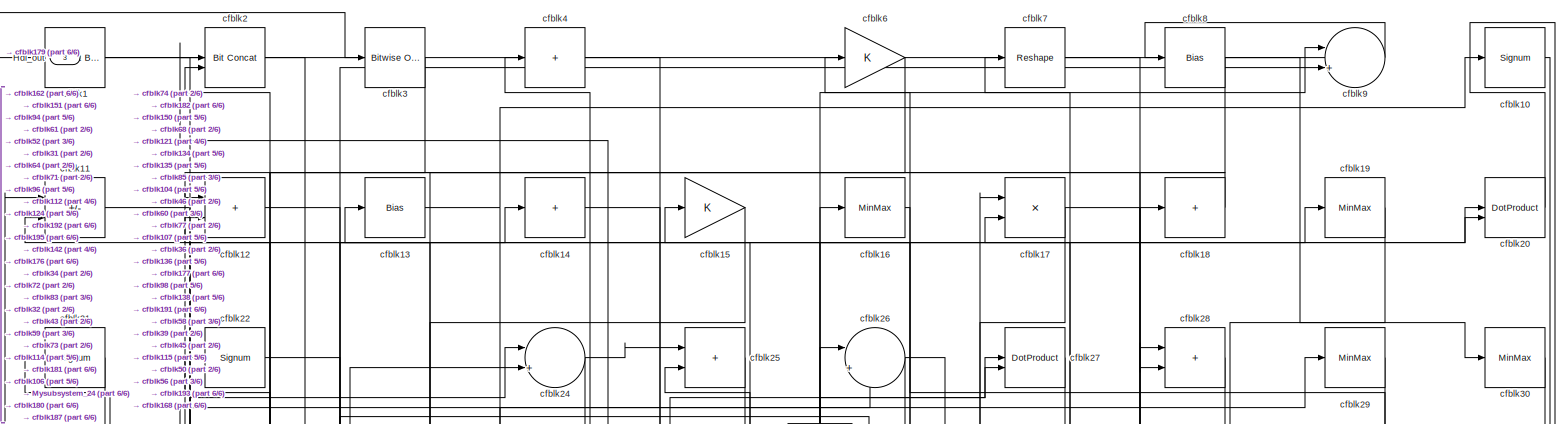
[diagram: root canvas - part 1/6, full width, top band]
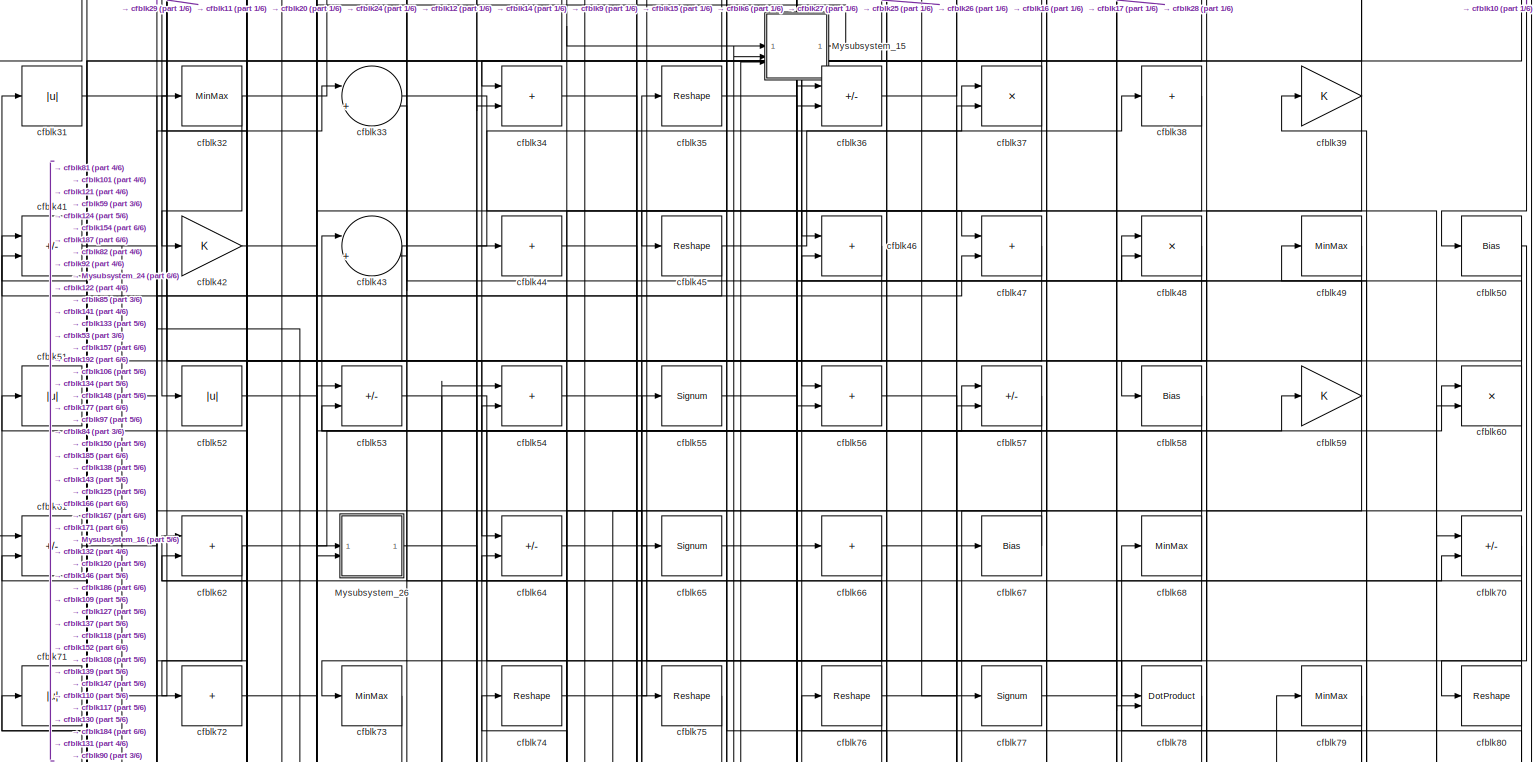
[diagram: root canvas - part 2/6, full width, top band]
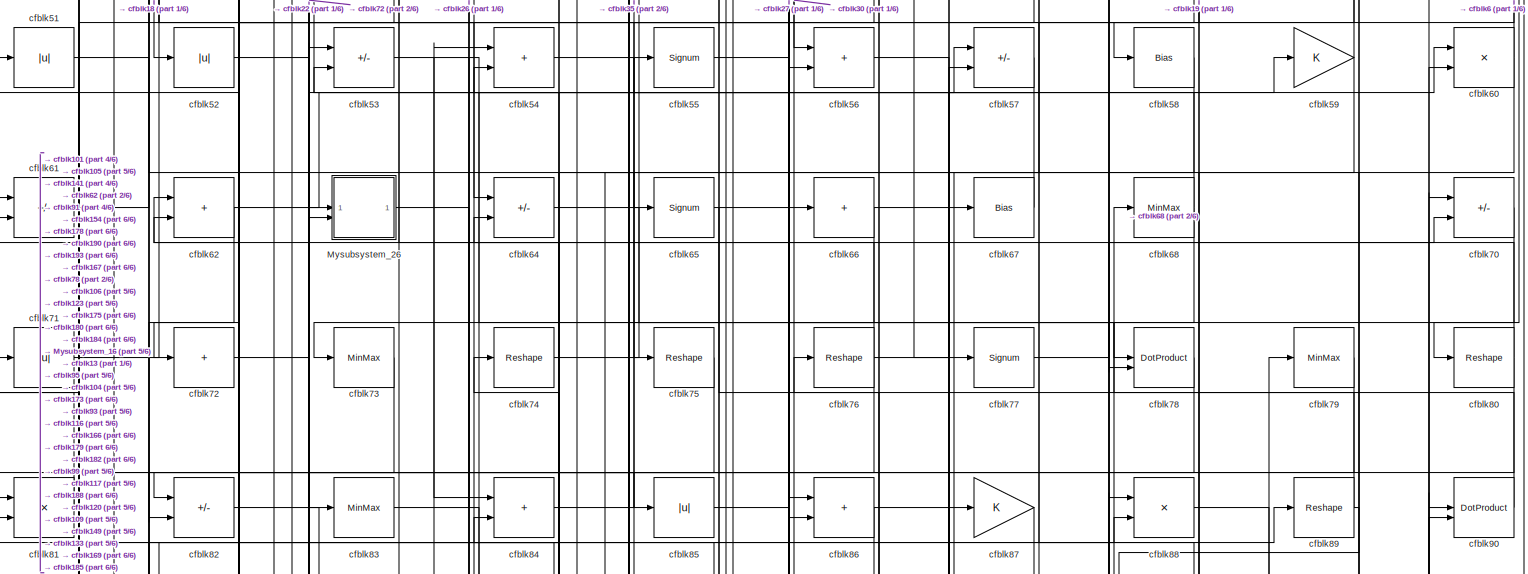
[diagram: root canvas - part 3/6, full width, middle band]
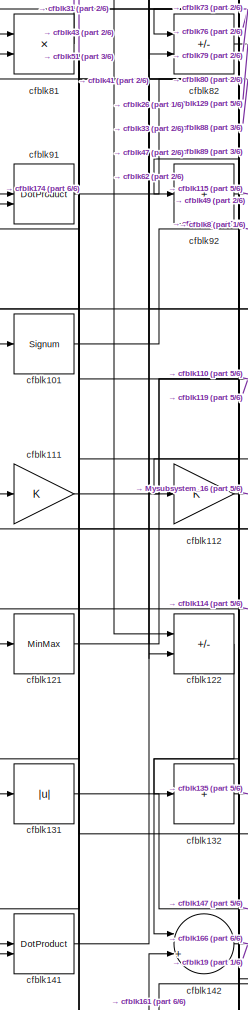
[diagram: root canvas - part 4/6, middle left region]
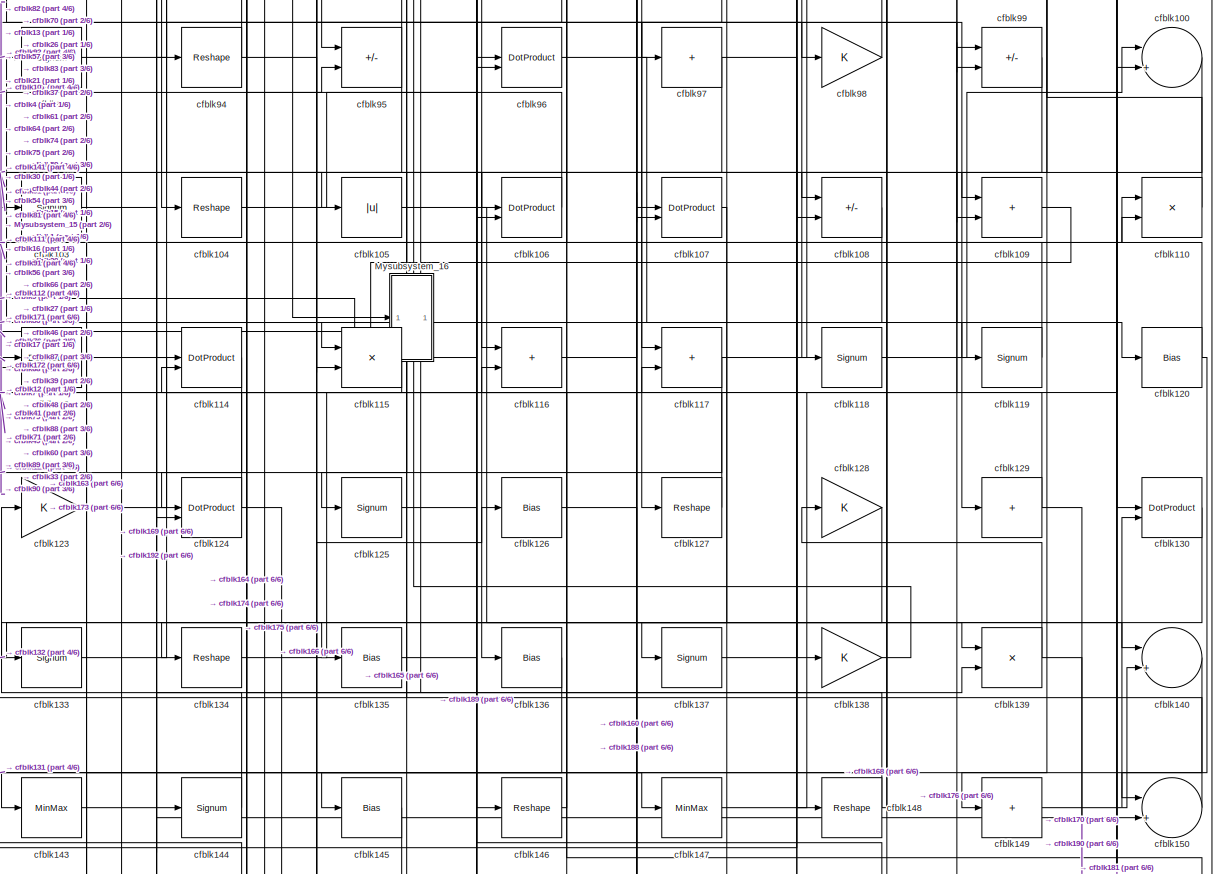
[diagram: root canvas - part 5/6, full width, middle band]
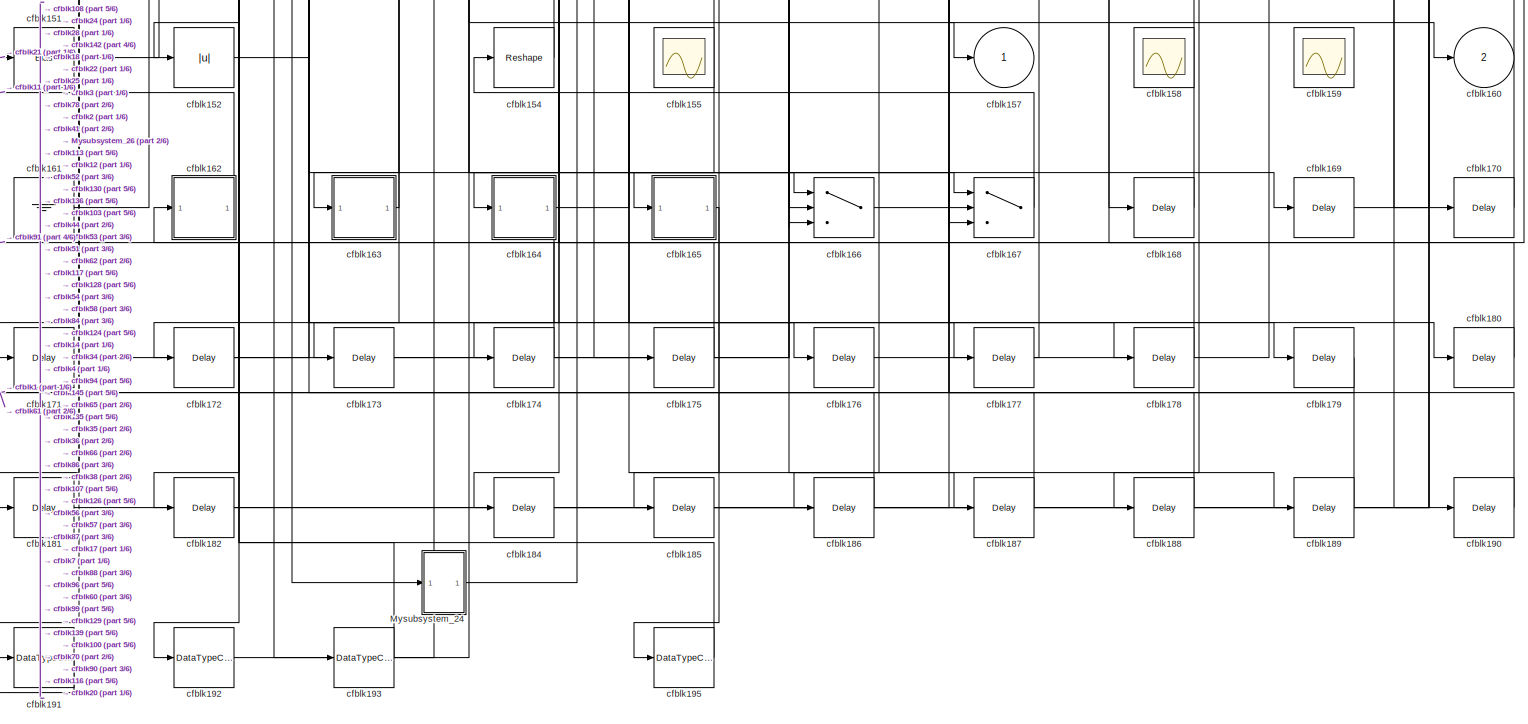
[diagram: root canvas - part 6/6, full width, bottom band]
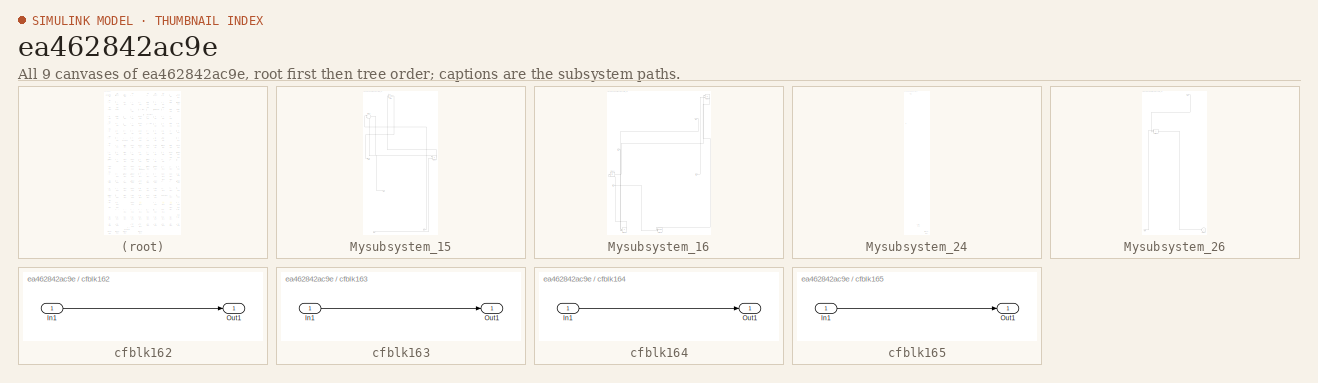
[diagram: thumbnail index - all 9 canvases of the model, root first then tree order]
MODEL slx_ea462842ac9e
KIND model
CONFIG AbsTol = auto
CONFIG EnableMultiTasking = off
CONFIG FixedStep = auto
CONFIG MaxStep = auto
CONFIG MinStep = auto
CONFIG RelTol = 1e-3
CONFIG SampleTimeConstraint = Unconstrained
CONFIG SolverName = VariableStepAuto
CONFIG StartTime = 0.0
CONFIG StopTime = 10.0
BLOCK [Outport] Hdl_out
  OutDataTypeStr = uint8
  Port = 3
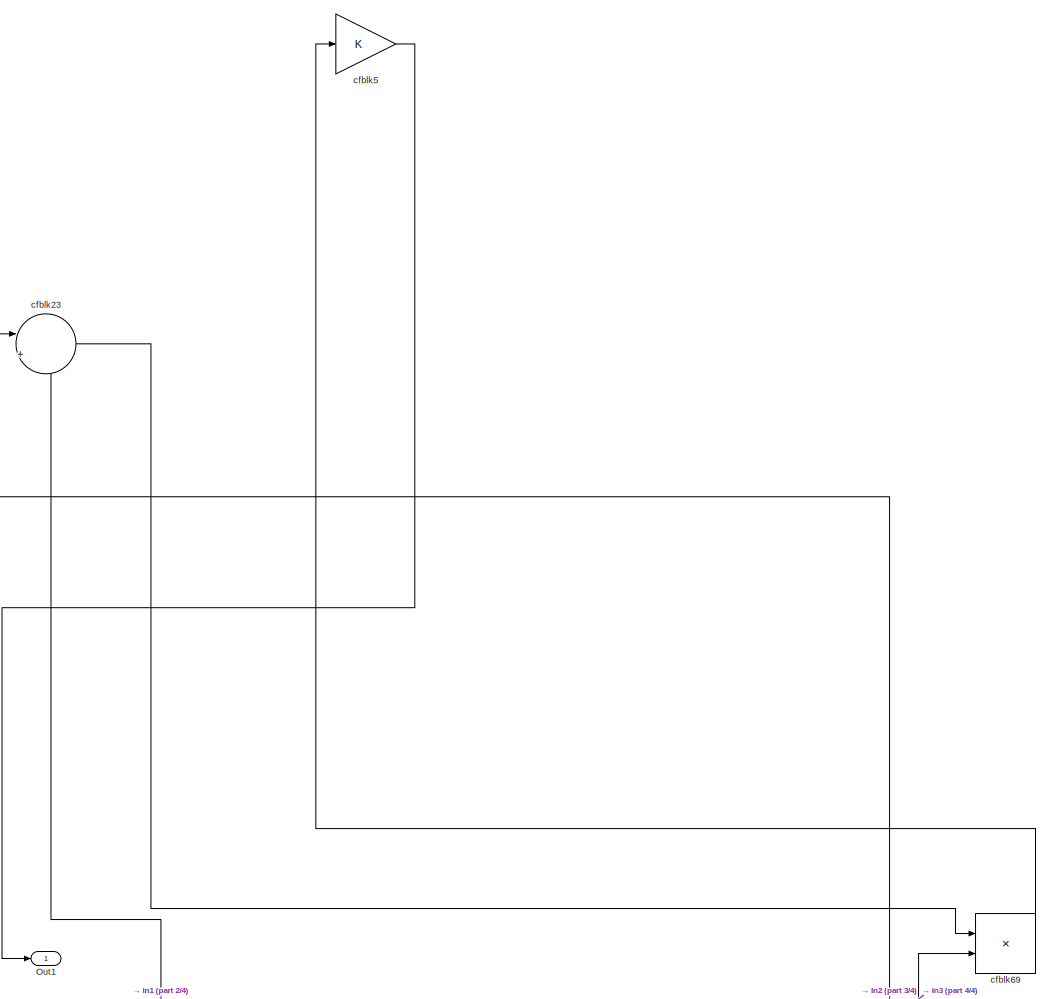
[diagram: Mysubsystem_15 - part 1/4, full width, top band]
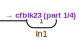
[diagram: Mysubsystem_15 - part 2/4, bottom left region]
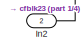
[diagram: Mysubsystem_15 - part 3/4, bottom right region]
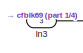
[diagram: Mysubsystem_15 - part 4/4, bottom left region]
BLOCK [SubSystem] Mysubsystem_15
  RTWFcnName = Mysubsystem_15
  RTWFcnNameOpts = User specified
  RTWFileNameOpts = Use function name
  RTWSystemCode = Reusable function
  TreatAsAtomicUnit = on
BLOCK [Inport] Mysubsystem_15/In1
BLOCK [Inport] Mysubsystem_15/In2
  Port = 2
BLOCK [Inport] Mysubsystem_15/In3
  Port = 3
BLOCK [Outport] Mysubsystem_15/Out1
BLOCK [Sum] Mysubsystem_15/cfblk23
  Inputs = |++
BLOCK [Gain] Mysubsystem_15/cfblk5
BLOCK [Product] Mysubsystem_15/cfblk69
  Inputs = */
  RndMeth = Zero
  SaturateOnIntegerOverflow = on
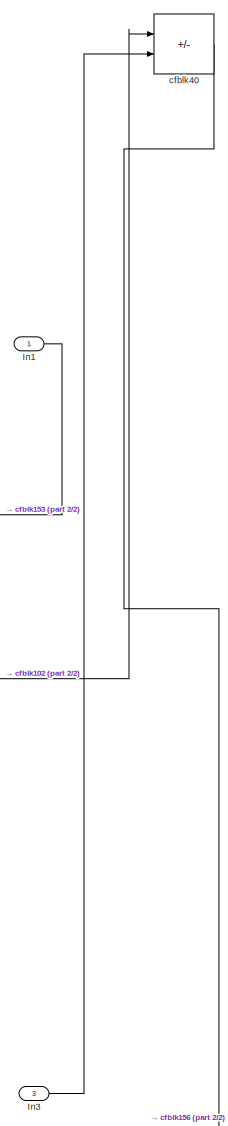
[diagram: Mysubsystem_16 - part 1/2, top right region]
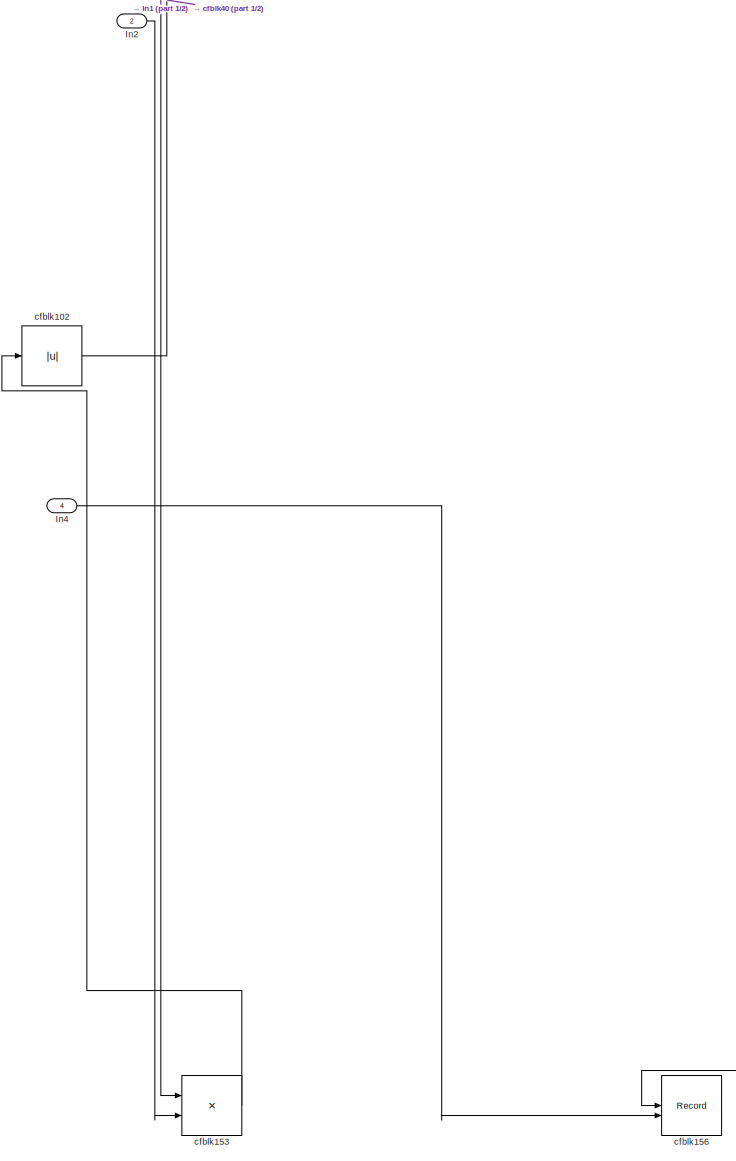
[diagram: Mysubsystem_16 - part 2/2, bottom left region]
BLOCK [SubSystem] Mysubsystem_16
  RTWFcnName = Mysubsystem_16
  RTWFcnNameOpts = User specified
  RTWFileNameOpts = Use function name
  RTWSystemCode = Reusable function
  TreatAsAtomicUnit = on
BLOCK [Inport] Mysubsystem_16/In1
BLOCK [Inport] Mysubsystem_16/In2
  Port = 2
BLOCK [Inport] Mysubsystem_16/In3
  Port = 3
BLOCK [Inport] Mysubsystem_16/In4
  Port = 4
BLOCK [Abs] Mysubsystem_16/cfblk102
  SaturateOnIntegerOverflow = off
BLOCK [Product] Mysubsystem_16/cfblk153
  Inputs = */
  RndMeth = Zero
  SaturateOnIntegerOverflow = on
BLOCK [Record] Mysubsystem_16/cfblk156
  CompatibilityTag = XY
  FileSettingsInternal = {"entries":[{"content":{"excelSettings":{"content":{},"type":"Streamout.ExcelSettings"}},"type":"Streamout.FileSettingStorage","uuid":""}],"packageUris":["http:\/\/schema.mathworks.com\/mf0\/streamout_blocks\/R2020a"],"version":"1.0"}
  Layout = [1 1]
  SignalsInternal = {"entries":[{"content":{},"type":"RecordBlkView.InputSignals","uuid":""}],"packageUris":["http:\/\/schema.mathworks.com\/mf0\/streamout_blocks\/R2020a"],"version":"1.0"}
  VisualizationBindings = {"xyplotplugin":{"info":[{"series":[],"subplotID":1}]}}
  st = -1
BLOCK [Sum] Mysubsystem_16/cfblk40
  IconShape = rectangular
  Inputs = +-
BLOCK [SubSystem] Mysubsystem_24
  RTWFcnName = Mysubsystem_24
  RTWFcnNameOpts = User specified
  RTWFileNameOpts = Use function name
  RTWSystemCode = Reusable function
  TreatAsAtomicUnit = on
BLOCK [Inport] Mysubsystem_24/In1
BLOCK [Outport] Mysubsystem_24/Out1
BLOCK [Delay] Mysubsystem_24/cfblk183
  InputPortMap = u0
  SampleTime = 1
BLOCK [DataTypeConversion] Mysubsystem_24/cfblk194
  OutDataTypeStr = uint8
  RndMeth = Floor
  SaturateOnIntegerOverflow = off
BLOCK [SubSystem] Mysubsystem_26
  RTWFcnName = Mysubsystem_26
  RTWFcnNameOpts = User specified
  RTWFileNameOpts = Use function name
  RTWSystemCode = Reusable function
  TreatAsAtomicUnit = on
BLOCK [Inport] Mysubsystem_26/In1
BLOCK [Inport] Mysubsystem_26/In2
  Port = 2
BLOCK [Outport] Mysubsystem_26/cfblk157
  VectorParamsAs1DForOutWhenUnconnected = off
BLOCK [Sum] Mysubsystem_26/cfblk63
  IconShape = rectangular
BLOCK [Reference] cfblk1  REF=simulink/Logic and Bit
Operations/Extract Bits
  LibrarySourceBlock = hdlsllib/Logic and Bit\nOperations/Extract Bits
  SourceBlock = simulink/Logic and Bit\nOperations/Extract Bits
  SourceType = Extract Bits
BLOCK [Signum] cfblk10
BLOCK [Sum] cfblk100
  Inputs = |++
  OutDataTypeStr = uint8
BLOCK [Signum] cfblk101
BLOCK [Signum] cfblk103
BLOCK [Reshape] cfblk104
BLOCK [Abs] cfblk105
  OutDataTypeStr = uint8
  SaturateOnIntegerOverflow = off
BLOCK [DotProduct] cfblk106
  OutDataTypeStr = uint8
BLOCK [DotProduct] cfblk107
  OutDataTypeStr = uint8
BLOCK [Sum] cfblk108
  IconShape = rectangular
  Inputs = +-
  OutDataTypeStr = uint8
BLOCK [Sum] cfblk109
  IconShape = rectangular
  OutDataTypeStr = uint8
BLOCK [Sum] cfblk11
  IconShape = rectangular
  Inputs = +-
  OutDataTypeStr = uint8
BLOCK [Product] cfblk110
  Inputs = */
  OutDataTypeStr = uint8
  RndMeth = Zero
  SaturateOnIntegerOverflow = on
BLOCK [Gain] cfblk111
  OutDataTypeStr = uint8
BLOCK [Gain] cfblk112
  OutDataTypeStr = uint8
BLOCK [DotProduct] cfblk113
  OutDataTypeStr = uint8
BLOCK [DotProduct] cfblk114
  OutDataTypeStr = uint8
BLOCK [Product] cfblk115
  Inputs = */
  OutDataTypeStr = uint8
  RndMeth = Zero
  SaturateOnIntegerOverflow = on
BLOCK [Sum] cfblk116
  IconShape = rectangular
  OutDataTypeStr = uint8
BLOCK [Sum] cfblk117
  IconShape = rectangular
  OutDataTypeStr = uint8
BLOCK [Signum] cfblk118
BLOCK [Signum] cfblk119
BLOCK [Sum] cfblk12
  IconShape = rectangular
  OutDataTypeStr = uint8
BLOCK [Bias] cfblk120
  Bias = 0.0
  SaturateOnIntegerOverflow = off
BLOCK [MinMax] cfblk121
  OutDataTypeStr = uint8
BLOCK [Sum] cfblk122
  IconShape = rectangular
  Inputs = +-
  OutDataTypeStr = uint8
BLOCK [Gain] cfblk123
  OutDataTypeStr = uint8
BLOCK [DotProduct] cfblk124
  OutDataTypeStr = uint8
BLOCK [Signum] cfblk125
BLOCK [Bias] cfblk126
  Bias = 0.0
  SaturateOnIntegerOverflow = off
BLOCK [Reshape] cfblk127
BLOCK [Gain] cfblk128
  OutDataTypeStr = uint8
BLOCK [Sum] cfblk129
  IconShape = rectangular
  Inputs = +
  OutDataTypeStr = uint8
BLOCK [Bias] cfblk13
  Bias = 0.0
  SaturateOnIntegerOverflow = off
BLOCK [DotProduct] cfblk130
  OutDataTypeStr = uint8
BLOCK [Abs] cfblk131
  OutDataTypeStr = uint8
  SaturateOnIntegerOverflow = off
BLOCK [Sum] cfblk132
  IconShape = rectangular
  Inputs = +
  OutDataTypeStr = uint8
BLOCK [Signum] cfblk133
BLOCK [Reshape] cfblk134
BLOCK [Bias] cfblk135
  Bias = 0.0
  SaturateOnIntegerOverflow = off
BLOCK [Bias] cfblk136
  Bias = 0.0
  SaturateOnIntegerOverflow = off
BLOCK [Signum] cfblk137
BLOCK [Gain] cfblk138
  OutDataTypeStr = uint8
BLOCK [Product] cfblk139
  Inputs = */
  OutDataTypeStr = uint8
  RndMeth = Zero
  SaturateOnIntegerOverflow = on
BLOCK [Sum] cfblk14
  IconShape = rectangular
  Inputs = +
  OutDataTypeStr = uint8
BLOCK [Sum] cfblk140
  Inputs = |++
  OutDataTypeStr = uint8
BLOCK [DotProduct] cfblk141
  OutDataTypeStr = uint8
BLOCK [Sum] cfblk142
  Inputs = |++
  OutDataTypeStr = uint8
BLOCK [MinMax] cfblk143
  OutDataTypeStr = uint8
BLOCK [Signum] cfblk144
BLOCK [Bias] cfblk145
  Bias = 0.0
  SaturateOnIntegerOverflow = off
BLOCK [Reshape] cfblk146
BLOCK [MinMax] cfblk147
  OutDataTypeStr = uint8
BLOCK [Reshape] cfblk148
BLOCK [Sum] cfblk149
  IconShape = rectangular
  Inputs = +
  OutDataTypeStr = uint8
BLOCK [Gain] cfblk15
  OutDataTypeStr = uint8
BLOCK [Sum] cfblk150
  Inputs = |++
  OutDataTypeStr = uint8
BLOCK [Bias] cfblk151
  Bias = 0.0
  SaturateOnIntegerOverflow = off
BLOCK [Abs] cfblk152
  OutDataTypeStr = uint8
  SaturateOnIntegerOverflow = off
BLOCK [Reshape] cfblk154
BLOCK [Scope] cfblk155
  Floating = on
  NumInputPorts = 1
  ScopeSpecificationString = Simulink.scopes.TimeScopeBlockCfg('CurrentConfiguration', extmgr.ConfigurationSet(extmgr.Configuration('Core','General UI',true,'FigureColor',[0.156862745098039 0.156862745098039 0.156862745098039]),extmgr.Configuration('Core','Source UI',true),extmgr.Configuration('Sources','WiredSimulink',true,'DataLoggingVariableName','ScopeData1','DataLoggingSaveFormat','StructureWithTime','DataLoggingLimitDat...<+2713ch>  <repeated x3 — deduplicated; at blocks: cfblk155, cfblk158, cfblk159>
BLOCK [Outport] cfblk157
  OutDataTypeStr = uint8
  VectorParamsAs1DForOutWhenUnconnected = off
BLOCK [Scope] cfblk158
  Floating = on
  NumInputPorts = 1
BLOCK [Scope] cfblk159
  Floating = on
  NumInputPorts = 1
BLOCK [MinMax] cfblk16
  OutDataTypeStr = uint8
BLOCK [Outport] cfblk160
  OutDataTypeStr = uint8
  Port = 2
  VectorParamsAs1DForOutWhenUnconnected = off
BLOCK [Ground] cfblk161
BLOCK [SubSystem] cfblk162
  LibrarySourceBlock = hdlsllib/Ports &\nSubsystems/Subsystem
BLOCK [Inport] cfblk162/In1
BLOCK [Outport] cfblk162/Out1
BLOCK [SubSystem] cfblk163
  LibrarySourceBlock = hdlsllib/Ports &\nSubsystems/Subsystem
BLOCK [Inport] cfblk163/In1
BLOCK [Outport] cfblk163/Out1
BLOCK [SubSystem] cfblk164
  LibrarySourceBlock = hdlsllib/Ports &\nSubsystems/Subsystem
BLOCK [Inport] cfblk164/In1
BLOCK [Outport] cfblk164/Out1
BLOCK [SubSystem] cfblk165
  LibrarySourceBlock = hdlsllib/Ports &\nSubsystems/Subsystem
BLOCK [Inport] cfblk165/In1
BLOCK [Outport] cfblk165/Out1
BLOCK [Switch] cfblk166
  InputSameDT = off
  OutDataTypeStr = uint8
  SaturateOnIntegerOverflow = off
BLOCK [Switch] cfblk167
  InputSameDT = off
  OutDataTypeStr = uint8
  SaturateOnIntegerOverflow = off
BLOCK [Delay] cfblk168
  InputPortMap = u0
  SampleTime = 1
BLOCK [Delay] cfblk169
  InputPortMap = u0
  SampleTime = 1
BLOCK [Product] cfblk17
  Inputs = */
  OutDataTypeStr = uint8
  RndMeth = Zero
  SaturateOnIntegerOverflow = on
BLOCK [Delay] cfblk170
  InputPortMap = u0
  SampleTime = 1
BLOCK [Delay] cfblk171
  InputPortMap = u0
  SampleTime = 1
BLOCK [Delay] cfblk172
  InputPortMap = u0
  SampleTime = 1
BLOCK [Delay] cfblk173
  InputPortMap = u0
  SampleTime = 1
BLOCK [Delay] cfblk174
  InputPortMap = u0
  SampleTime = 1
BLOCK [Delay] cfblk175
  InputPortMap = u0
  SampleTime = 1
BLOCK [Delay] cfblk176
  InputPortMap = u0
  SampleTime = 1
BLOCK [Delay] cfblk177
  InputPortMap = u0
  SampleTime = 1
BLOCK [Delay] cfblk178
  InputPortMap = u0
  SampleTime = 1
BLOCK [Delay] cfblk179
  InputPortMap = u0
  SampleTime = 1
BLOCK [Sum] cfblk18
  IconShape = rectangular
  Inputs = +
  OutDataTypeStr = uint8
BLOCK [Delay] cfblk180
  InputPortMap = u0
  SampleTime = 1
BLOCK [Delay] cfblk181
  InputPortMap = u0
  SampleTime = 1
BLOCK [Delay] cfblk182
  InputPortMap = u0
  SampleTime = 1
BLOCK [Delay] cfblk184
  InputPortMap = u0
  SampleTime = 1
BLOCK [Delay] cfblk185
  InputPortMap = u0
  SampleTime = 1
BLOCK [Delay] cfblk186
  InputPortMap = u0
  SampleTime = 1
BLOCK [Delay] cfblk187
  InputPortMap = u0
  SampleTime = 1
BLOCK [Delay] cfblk188
  InputPortMap = u0
  SampleTime = 1
BLOCK [Delay] cfblk189
  InputPortMap = u0
  SampleTime = 1
BLOCK [MinMax] cfblk19
  OutDataTypeStr = uint8
BLOCK [Delay] cfblk190
  InputPortMap = u0
  SampleTime = 1
BLOCK [DataTypeConversion] cfblk191
  OutDataTypeStr = uint8
  RndMeth = Floor
  SaturateOnIntegerOverflow = off
BLOCK [DataTypeConversion] cfblk192
  OutDataTypeStr = uint8
  RndMeth = Floor
  SaturateOnIntegerOverflow = off
BLOCK [DataTypeConversion] cfblk193
  OutDataTypeStr = uint8
  RndMeth = Floor
  SaturateOnIntegerOverflow = off
BLOCK [DataTypeConversion] cfblk195
  OutDataTypeStr = uint8
  RndMeth = Floor
  SaturateOnIntegerOverflow = off
BLOCK [Reference] cfblk2  REF=hdlsllib/Logic and Bit
Operations/Bit Concat
  SourceBlock = hdlsllib/Logic and Bit\nOperations/Bit Concat
  SourceType = Bit Concat
BLOCK [DotProduct] cfblk20
  OutDataTypeStr = uint8
BLOCK [Signum] cfblk21
BLOCK [Signum] cfblk22
BLOCK [Sum] cfblk24
  Inputs = |++
  OutDataTypeStr = uint8
BLOCK [Sum] cfblk25
  IconShape = rectangular
  OutDataTypeStr = uint8
BLOCK [Sum] cfblk26
  Inputs = |++
  OutDataTypeStr = uint8
BLOCK [DotProduct] cfblk27
  OutDataTypeStr = uint8
BLOCK [Sum] cfblk28
  IconShape = rectangular
  OutDataTypeStr = uint8
BLOCK [MinMax] cfblk29
  OutDataTypeStr = uint8
BLOCK [Reference] cfblk3  REF=simulink/Logic and Bit
Operations/Bitwise
Operator
  LibrarySourceBlock = hdlsllib/Logic and Bit\nOperations/Bitwise\nOperator
  SourceBlock = simulink/Logic and Bit\nOperations/Bitwise\nOperator
  SourceType = Bitwise Operator
BLOCK [MinMax] cfblk30
  OutDataTypeStr = uint8
BLOCK [Abs] cfblk31
  OutDataTypeStr = uint8
  SaturateOnIntegerOverflow = off
BLOCK [MinMax] cfblk32
  OutDataTypeStr = uint8
BLOCK [Sum] cfblk33
  Inputs = |++
  OutDataTypeStr = uint8
BLOCK [Sum] cfblk34
  IconShape = rectangular
  OutDataTypeStr = uint8
BLOCK [Reshape] cfblk35
BLOCK [Sum] cfblk36
  IconShape = rectangular
  Inputs = +-
  OutDataTypeStr = uint8
BLOCK [Product] cfblk37
  Inputs = */
  OutDataTypeStr = uint8
  RndMeth = Zero
  SaturateOnIntegerOverflow = on
BLOCK [Sum] cfblk38
  IconShape = rectangular
  Inputs = +
  OutDataTypeStr = uint8
BLOCK [Gain] cfblk39
  OutDataTypeStr = uint8
BLOCK [Sum] cfblk4
  IconShape = rectangular
  Inputs = +
  OutDataTypeStr = uint8
BLOCK [Sum] cfblk41
  IconShape = rectangular
  Inputs = +-
  OutDataTypeStr = uint8
BLOCK [Gain] cfblk42
  OutDataTypeStr = uint8
BLOCK [Sum] cfblk43
  Inputs = |++
  OutDataTypeStr = uint8
BLOCK [Sum] cfblk44
  IconShape = rectangular
  Inputs = +
  OutDataTypeStr = uint8
BLOCK [Reshape] cfblk45
BLOCK [Sum] cfblk46
  IconShape = rectangular
  OutDataTypeStr = uint8
BLOCK [Sum] cfblk47
  IconShape = rectangular
  OutDataTypeStr = uint8
BLOCK [Product] cfblk48
  Inputs = */
  OutDataTypeStr = uint8
  RndMeth = Zero
  SaturateOnIntegerOverflow = on
BLOCK [MinMax] cfblk49
  OutDataTypeStr = uint8
BLOCK [Bias] cfblk50
  Bias = 0.0
  SaturateOnIntegerOverflow = off
BLOCK [Abs] cfblk51
  OutDataTypeStr = uint8
  SaturateOnIntegerOverflow = off
BLOCK [Abs] cfblk52
  OutDataTypeStr = uint8
  SaturateOnIntegerOverflow = off
BLOCK [Sum] cfblk53
  IconShape = rectangular
  Inputs = +-
  OutDataTypeStr = uint8
BLOCK [Sum] cfblk54
  IconShape = rectangular
  OutDataTypeStr = uint8
BLOCK [Signum] cfblk55
BLOCK [Sum] cfblk56
  IconShape = rectangular
  OutDataTypeStr = uint8
BLOCK [Sum] cfblk57
  IconShape = rectangular
  Inputs = +-
  OutDataTypeStr = uint8
BLOCK [Bias] cfblk58
  Bias = 0.0
  SaturateOnIntegerOverflow = off
BLOCK [Gain] cfblk59
  OutDataTypeStr = uint8
BLOCK [Gain] cfblk6
  OutDataTypeStr = uint8
BLOCK [Product] cfblk60
  Inputs = */
  OutDataTypeStr = uint8
  RndMeth = Zero
  SaturateOnIntegerOverflow = on
BLOCK [Sum] cfblk61
  IconShape = rectangular
  Inputs = +-
  OutDataTypeStr = uint8
BLOCK [Sum] cfblk62
  IconShape = rectangular
  OutDataTypeStr = uint8
BLOCK [Sum] cfblk64
  IconShape = rectangular
  Inputs = +-
  OutDataTypeStr = uint8
BLOCK [Signum] cfblk65
BLOCK [Sum] cfblk66
  IconShape = rectangular
  Inputs = +
  OutDataTypeStr = uint8
BLOCK [Bias] cfblk67
  Bias = 0.0
  SaturateOnIntegerOverflow = off
BLOCK [MinMax] cfblk68
  OutDataTypeStr = uint8
BLOCK [Reshape] cfblk7
BLOCK [Sum] cfblk70
  IconShape = rectangular
  Inputs = +-
  OutDataTypeStr = uint8
BLOCK [Abs] cfblk71
  OutDataTypeStr = uint8
  SaturateOnIntegerOverflow = off
BLOCK [Sum] cfblk72
  IconShape = rectangular
  Inputs = +
  OutDataTypeStr = uint8
BLOCK [MinMax] cfblk73
  OutDataTypeStr = uint8
BLOCK [Reshape] cfblk74
BLOCK [Reshape] cfblk75
BLOCK [Reshape] cfblk76
BLOCK [Signum] cfblk77
BLOCK [DotProduct] cfblk78
  OutDataTypeStr = uint8
BLOCK [MinMax] cfblk79
  OutDataTypeStr = uint8
BLOCK [Bias] cfblk8
  Bias = 0.0
  SaturateOnIntegerOverflow = off
BLOCK [Reshape] cfblk80
BLOCK [Product] cfblk81
  Inputs = */
  OutDataTypeStr = uint8
  RndMeth = Zero
  SaturateOnIntegerOverflow = on
BLOCK [Sum] cfblk82
  IconShape = rectangular
  Inputs = +-
  OutDataTypeStr = uint8
BLOCK [MinMax] cfblk83
  OutDataTypeStr = uint8
BLOCK [Sum] cfblk84
  IconShape = rectangular
  OutDataTypeStr = uint8
BLOCK [Abs] cfblk85
  OutDataTypeStr = uint8
  SaturateOnIntegerOverflow = off
BLOCK [Sum] cfblk86
  IconShape = rectangular
  OutDataTypeStr = uint8
BLOCK [Gain] cfblk87
  OutDataTypeStr = uint8
BLOCK [Product] cfblk88
  Inputs = */
  OutDataTypeStr = uint8
  RndMeth = Zero
  SaturateOnIntegerOverflow = on
BLOCK [Reshape] cfblk89
BLOCK [Sum] cfblk9
  Inputs = |++
  OutDataTypeStr = uint8
BLOCK [DotProduct] cfblk90
  OutDataTypeStr = uint8
BLOCK [DotProduct] cfblk91
  OutDataTypeStr = uint8
BLOCK [Sum] cfblk92
  IconShape = rectangular
  Inputs = +
  OutDataTypeStr = uint8
BLOCK [Signum] cfblk93
BLOCK [Reshape] cfblk94
BLOCK [Sum] cfblk95
  IconShape = rectangular
  Inputs = +-
  OutDataTypeStr = uint8
BLOCK [DotProduct] cfblk96
  OutDataTypeStr = uint8
BLOCK [Sum] cfblk97
  IconShape = rectangular
  Inputs = +
  OutDataTypeStr = uint8
BLOCK [Gain] cfblk98
  OutDataTypeStr = uint8
BLOCK [Sum] cfblk99
  IconShape = rectangular
  Inputs = +-
  OutDataTypeStr = uint8
LINE Mysubsystem_15/In1:1 -> Mysubsystem_15/cfblk23:2
LINE Mysubsystem_15/In2:1 -> Mysubsystem_15/cfblk23:1
LINE Mysubsystem_15/In3:1 -> Mysubsystem_15/cfblk69:2
LINE Mysubsystem_15/cfblk23:1 -> Mysubsystem_15/cfblk69:1
LINE Mysubsystem_15/cfblk5:1 -> Mysubsystem_15/Out1:1
LINE Mysubsystem_15/cfblk69:1 -> Mysubsystem_15/cfblk5:1
LINE Mysubsystem_15:1 -> Mysubsystem_26:1
LINE Mysubsystem_16/In1:1 -> Mysubsystem_16/cfblk153:1
LINE Mysubsystem_16/In2:1 -> Mysubsystem_16/cfblk153:2
LINE Mysubsystem_16/In3:1 -> Mysubsystem_16/cfblk40:2
LINE Mysubsystem_16/In4:1 -> Mysubsystem_16/cfblk156:2
LINE Mysubsystem_16/cfblk102:1 -> Mysubsystem_16/cfblk40:1
LINE Mysubsystem_16/cfblk153:1 -> Mysubsystem_16/cfblk102:1
LINE Mysubsystem_16/cfblk40:1 -> Mysubsystem_16/cfblk156:1
LINE Mysubsystem_24/In1:1 -> Mysubsystem_24/cfblk183:1
LINE Mysubsystem_24/cfblk183:1 -> Mysubsystem_24/cfblk194:1
LINE Mysubsystem_24/cfblk194:1 -> Mysubsystem_24/Out1:1
LINE Mysubsystem_24:1 -> cfblk2:1
LINE Mysubsystem_26/In1:1 -> Mysubsystem_26/cfblk63:2
LINE Mysubsystem_26/In2:1 -> Mysubsystem_26/cfblk63:1
LINE Mysubsystem_26/cfblk63:1 -> Mysubsystem_26/cfblk157:1
LINE Mysubsystem_26:1 -> cfblk157:1
NET cfblk100:1 -> cfblk116:1, cfblk125:1
NET cfblk101:1 -> cfblk47:2, cfblk95:2
NET cfblk103:1 -> cfblk110:2, cfblk169:1
LINE cfblk104:1 -> cfblk56:2
LINE cfblk105:1 -> cfblk139:1
NET cfblk106:1 -> Mysubsystem_15:1, cfblk4:1
LINE cfblk107:1 -> cfblk137:1
LINE cfblk108:1 -> cfblk171:1
LINE cfblk109:1 -> Mysubsystem_16:3
LINE cfblk10:1 -> cfblk50:1
LINE cfblk110:1 -> cfblk49:1
LINE cfblk111:1 -> cfblk110:1
LINE cfblk112:1 -> Mysubsystem_16:4
LINE cfblk113:1 -> cfblk117:2
LINE cfblk114:1 -> cfblk121:1
NET cfblk115:1 -> cfblk114:2, cfblk20:2
LINE cfblk116:1 -> cfblk60:1
NET cfblk117:1 -> cfblk164:1, cfblk39:1
LINE cfblk118:1 -> cfblk100:1
LINE cfblk119:1 -> cfblk91:2
LINE cfblk11:1 -> cfblk64:1
NET cfblk120:1 -> cfblk150:1, cfblk46:2
NET cfblk121:1 -> cfblk26:1, cfblk33:1
LINE cfblk122:1 -> cfblk142:1
LINE cfblk123:1 -> cfblk57:1
NET cfblk124:1 -> cfblk12:2, cfblk175:1, cfblk71:1
NET cfblk125:1 -> cfblk140:1, cfblk146:1, cfblk48:1
LINE cfblk126:1 -> cfblk160:1
LINE cfblk127:1 -> cfblk41:1
LINE cfblk128:1 -> cfblk174:1
NET cfblk129:1 -> cfblk113:2, cfblk170:1
NET cfblk12:1 -> cfblk176:1, cfblk34:2
LINE cfblk130:1 -> cfblk163:1
LINE cfblk131:1 -> cfblk147:1
LINE cfblk132:1 -> cfblk135:1
LINE cfblk133:1 -> cfblk90:2
LINE cfblk134:1 -> cfblk16:1
NET cfblk135:1 -> cfblk189:1, cfblk9:1
LINE cfblk136:1 -> cfblk173:1
LINE cfblk137:1 -> cfblk70:2
LINE cfblk138:1 -> Mysubsystem_15:2
NET cfblk139:1 -> cfblk190:1, cfblk48:2
NET cfblk13:1 -> cfblk10:1, cfblk114:1
LINE cfblk140:1 -> cfblk145:1
NET cfblk141:1 -> cfblk111:1, cfblk88:2
NET cfblk142:1 -> cfblk166:3, cfblk19:1
NET cfblk143:1 -> Mysubsystem_15:3, cfblk139:2, cfblk144:1, cfblk150:2
LINE cfblk144:1 -> cfblk123:1
LINE cfblk145:1 -> cfblk165:1
LINE cfblk146:1 -> cfblk76:1
LINE cfblk147:1 -> cfblk79:1
NET cfblk148:1 -> cfblk128:1, cfblk74:1
NET cfblk149:1 -> cfblk130:2, cfblk140:2
LINE cfblk14:1 -> cfblk180:1
NET cfblk150:1 -> cfblk15:1, cfblk61:2, cfblk64:2
LINE cfblk151:1 -> cfblk18:1
LINE cfblk152:1 -> Mysubsystem_26:2
NET cfblk154:1 -> cfblk51:1, cfblk62:1
LINE cfblk15:1 -> cfblk43:2
LINE cfblk161:1 -> cfblk142:2
LINE cfblk162/In1:1 -> cfblk162/Out1:1
LINE cfblk162:1 -> cfblk11:1
LINE cfblk163/In1:1 -> cfblk163/Out1:1
LINE cfblk163:1 -> cfblk103:1
LINE cfblk164/In1:1 -> cfblk164/Out1:1
NET cfblk164:1 -> cfblk126:1, cfblk172:1
LINE cfblk165/In1:1 -> cfblk165/Out1:1
LINE cfblk165:1 -> cfblk195:1
LINE cfblk166:1 -> cfblk87:1
LINE cfblk167:1 -> cfblk154:1
LINE cfblk168:1 -> cfblk96:1
LINE cfblk169:1 -> cfblk90:1
LINE cfblk16:1 -> cfblk46:1
LINE cfblk170:1 -> cfblk116:2
LINE cfblk171:1 -> cfblk36:2
LINE cfblk172:1 -> cfblk113:1
LINE cfblk173:1 -> cfblk86:2
LINE cfblk174:1 -> cfblk91:1
LINE cfblk175:1 -> cfblk84:2
LINE cfblk176:1 -> cfblk99:1
LINE cfblk177:1 -> cfblk17:2
LINE cfblk178:1 -> cfblk88:1
LINE cfblk179:1 -> cfblk1:1
NET cfblk17:1 -> cfblk107:2, cfblk138:1
LINE cfblk180:1 -> cfblk54:2
LINE cfblk181:1 -> cfblk100:2
LINE cfblk182:1 -> cfblk57:2
LINE cfblk184:1 -> cfblk70:1
LINE cfblk185:1 -> cfblk60:2
LINE cfblk186:1 -> cfblk61:1
LINE cfblk187:1 -> cfblk62:2
LINE cfblk188:1 -> cfblk107:1
LINE cfblk189:1 -> cfblk167:2
NET cfblk18:1 -> cfblk12:1, cfblk52:1
LINE cfblk190:1 -> cfblk53:1
LINE cfblk191:1 -> cfblk3:1
NET cfblk192:1 -> cfblk44:1, cfblk94:1
NET cfblk193:1 -> cfblk22:1, cfblk54:1
LINE cfblk195:1 -> cfblk2:2
LINE cfblk19:1 -> cfblk58:1
LINE cfblk1:1 -> cfblk96:2
LINE cfblk20:1 -> cfblk162:1
LINE cfblk21:1 -> cfblk151:1
LINE cfblk22:1 -> cfblk83:1
NET cfblk24:1 -> cfblk181:1, cfblk25:1
LINE cfblk25:1 -> cfblk182:1
NET cfblk26:1 -> cfblk104:1, cfblk77:1
LINE cfblk27:1 -> cfblk136:1
LINE cfblk28:1 -> cfblk191:1
LINE cfblk29:1 -> cfblk45:1
LINE cfblk2:1 -> cfblk193:1
NET cfblk30:1 -> cfblk115:2, cfblk56:1
NET cfblk31:1 -> cfblk24:1, cfblk65:1
NET cfblk32:1 -> cfblk24:2, cfblk42:1
LINE cfblk33:1 -> cfblk130:1
LINE cfblk34:1 -> cfblk177:1
LINE cfblk35:1 -> cfblk167:1
LINE cfblk36:1 -> cfblk17:1
NET cfblk37:1 -> cfblk134:1, cfblk34:1
LINE cfblk38:1 -> cfblk186:1
NET cfblk39:1 -> cfblk108:1, cfblk11:2
LINE cfblk3:1 -> cfblk192:1
NET cfblk41:1 -> Mysubsystem_24:1, cfblk122:1
LINE cfblk42:1 -> cfblk47:1
NET cfblk43:1 -> cfblk37:1, cfblk81:1
LINE cfblk44:1 -> cfblk97:1
NET cfblk45:1 -> cfblk38:1, cfblk41:2
LINE cfblk46:1 -> cfblk72:1
LINE cfblk47:1 -> cfblk92:1
LINE cfblk48:1 -> cfblk67:1
LINE cfblk49:1 -> cfblk82:1
LINE cfblk4:1 -> cfblk187:1
NET cfblk50:1 -> cfblk75:1, cfblk80:1
NET cfblk51:1 -> cfblk101:1, cfblk105:1
LINE cfblk52:1 -> cfblk178:1
NET cfblk53:1 -> cfblk167:3, cfblk78:1, cfblk84:1
LINE cfblk54:1 -> cfblk95:1
LINE cfblk55:1 -> cfblk86:1
LINE cfblk56:1 -> cfblk179:1
LINE cfblk57:1 -> cfblk53:2
LINE cfblk58:1 -> cfblk184:1
NET cfblk59:1 -> Mysubsystem_16:1, cfblk13:1
NET cfblk60:1 -> cfblk149:1, cfblk188:1, cfblk6:1
LINE cfblk61:1 -> cfblk29:1
NET cfblk62:1 -> cfblk122:2, cfblk36:1, cfblk59:1
LINE cfblk64:1 -> cfblk78:2
NET cfblk65:1 -> cfblk185:1, cfblk66:1
NET cfblk66:1 -> cfblk109:2, cfblk127:1, cfblk166:2
LINE cfblk67:1 -> cfblk43:1
NET cfblk68:1 -> cfblk118:1, cfblk25:2
LINE cfblk6:1 -> cfblk73:1
LINE cfblk70:1 -> cfblk133:1
LINE cfblk71:1 -> cfblk20:1
NET cfblk72:1 -> cfblk14:1, cfblk85:1, cfblk9:2
LINE cfblk73:1 -> cfblk141:1
NET cfblk74:1 -> cfblk108:2, cfblk27:1
LINE cfblk75:1 -> cfblk124:1
NET cfblk76:1 -> Mysubsystem_16:2, cfblk132:1, cfblk32:1, cfblk37:2
LINE cfblk77:1 -> cfblk28:1
LINE cfblk78:1 -> cfblk152:1
LINE cfblk79:1 -> cfblk82:2
LINE cfblk7:1 -> cfblk168:1
NET cfblk80:1 -> cfblk131:1, cfblk33:2
LINE cfblk81:1 -> cfblk31:1
LINE cfblk82:1 -> cfblk129:1
NET cfblk83:1 -> cfblk106:1, cfblk26:2
LINE cfblk84:1 -> cfblk35:1
LINE cfblk85:1 -> cfblk27:2
NET cfblk86:1 -> cfblk93:1, cfblk99:2
LINE cfblk87:1 -> cfblk117:1
LINE cfblk88:1 -> cfblk120:1
NET cfblk89:1 -> cfblk109:1, cfblk55:1
NET cfblk8:1 -> cfblk112:1, cfblk28:2, cfblk30:1
LINE cfblk90:1 -> cfblk68:1
LINE cfblk91:1 -> cfblk89:1
LINE cfblk92:1 -> cfblk115:1
LINE cfblk93:1 -> cfblk98:1
NET cfblk94:1 -> cfblk166:1, cfblk21:1
NET cfblk95:1 -> cfblk141:2, cfblk81:2
LINE cfblk96:1 -> cfblk119:1
NET cfblk97:1 -> cfblk124:2, cfblk148:1
LINE cfblk98:1 -> cfblk7:1
NET cfblk99:1 -> cfblk106:2, cfblk143:1
NET cfblk9:1 -> Hdl_out:1, cfblk8:1
note: NET lines group one-source signal fan-out (src -> all destinations, sorted); 1:1 wires keep LINE
